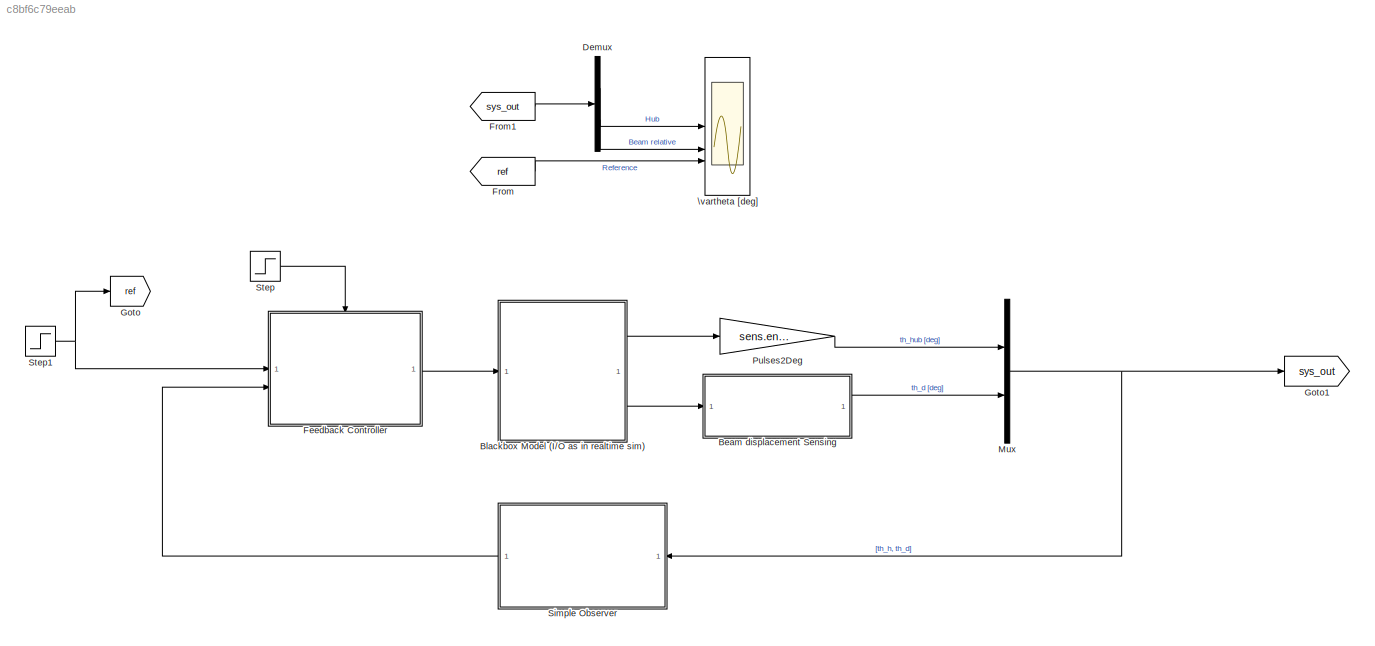
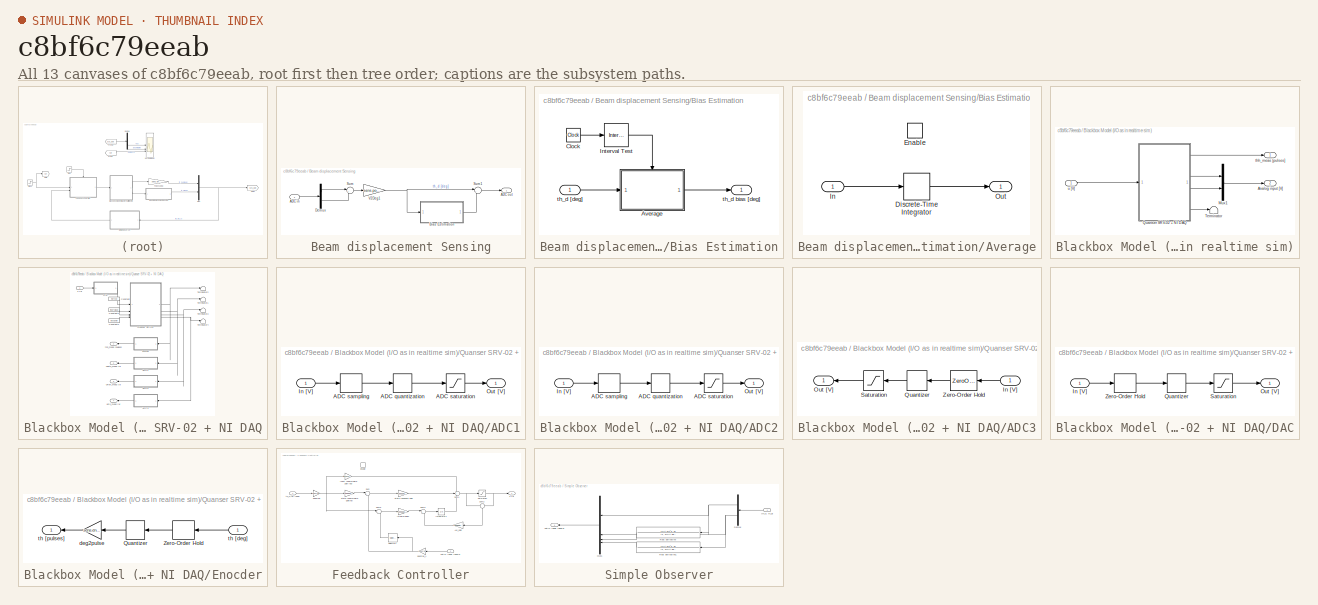
[diagram: thumbnail index - all 13 canvases of the model, root first then tree order]
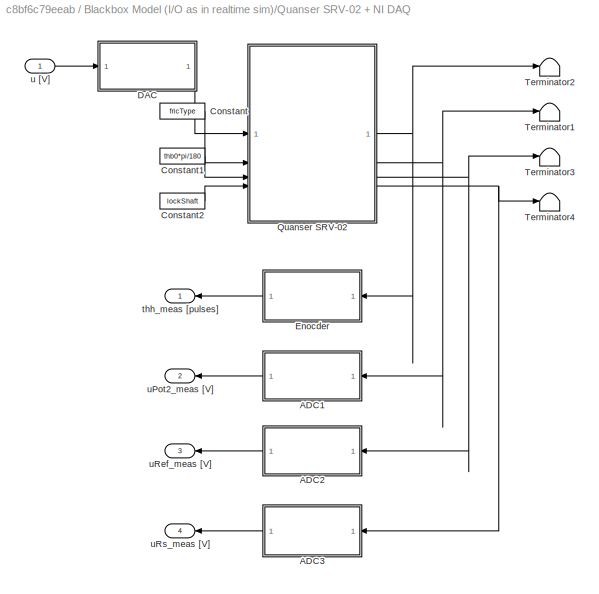
MODEL slx_c8bf6c79eeab
KIND model
CONFIG AbsTol = auto
CONFIG EnableMultiTasking = off
CONFIG FixedStep = auto
CONFIG MaxStep = auto
CONFIG MinStep = auto
CONFIG RelTol = 1e-3
CONFIG SampleTimeConstraint = Unconstrained
CONFIG SolverName = ode45
CONFIG StartTime = 0.0
CONFIG StopTime = sIn.simulation_time
BLOCK [SubSystem] Beam displacement Sensing
BLOCK [Inport] Beam displacement Sensing/ADC in
BLOCK [Outport] Beam displacement Sensing/ADC out
BLOCK [SubSystem] Beam displacement Sensing/Bias Estimation
BLOCK [SubSystem] Beam displacement Sensing/Bias Estimation/Average
BLOCK [DiscreteIntegrator] Beam displacement Sensing/Bias Estimation/Average/Discrete-Time Integrator
  ICPrevOutput = DiscIntNeverNeededParam
  ICPrevScaledInput = DiscIntNeverNeededParam
  InitialConditionSetting = Auto
  SampleTime = -1
  gainval = 1/(sIn.t1-sIn.t0)
BLOCK [EnablePort] Beam displacement Sensing/Bias Estimation/Average/Enable
BLOCK [Inport] Beam displacement Sensing/Bias Estimation/Average/In
BLOCK [Outport] Beam displacement Sensing/Bias Estimation/Average/Out
BLOCK [Clock] Beam displacement Sensing/Bias Estimation/Clock
BLOCK [Reference] Beam displacement Sensing/Bias Estimation/Interval Test  REF=simulink/Logic and Bit
Operations/Interval Test
  SourceBlock = simulink/Logic and Bit\nOperations/Interval Test
  SourceType = Interval Test
BLOCK [Inport] Beam displacement Sensing/Bias Estimation/th_d [deg]
BLOCK [Outport] Beam displacement Sensing/Bias Estimation/th_d bias [deg]
BLOCK [Demux] Beam displacement Sensing/Demux
  Outputs = 2
BLOCK [Sum] Beam displacement Sensing/Sum
  Inputs = |+-
BLOCK [Sum] Beam displacement Sensing/Sum1
  Inputs = |+-
BLOCK [Gain] Beam displacement Sensing/V2Deg1
  Gain = sens.pot2.V2deg
BLOCK [SubSystem] Blackbox Model (I//O as in realtime sim)
BLOCK [Outport] Blackbox Model (I//O as in realtime sim)/Analog input [V]
  Port = 2
BLOCK [Mux] Blackbox Model (I//O as in realtime sim)/Mux1
  DisplayOption = bar
  Inputs = 2
BLOCK [SubSystem] Blackbox Model (I//O as in realtime sim)/Quanser SRV-02 + NI DAQ
BLOCK [SubSystem] Blackbox Model (I//O as in realtime sim)/Quanser SRV-02 + NI DAQ/ADC1
BLOCK [Quantizer] Blackbox Model (I//O as in realtime sim)/Quanser SRV-02 + NI DAQ/ADC1/ADC quantization
  QuantizationInterval = daq.adc.q
BLOCK [ZeroOrderHold] Blackbox Model (I//O as in realtime sim)/Quanser SRV-02 + NI DAQ/ADC1/ADC sampling
  SampleTime = Ts
BLOCK [Saturate] Blackbox Model (I//O as in realtime sim)/Quanser SRV-02 + NI DAQ/ADC1/ADC saturation
  LowerLimit = -daq.adc.fs
  UpperLimit = daq.adc.fs
BLOCK [Inport] Blackbox Model (I//O as in realtime sim)/Quanser SRV-02 + NI DAQ/ADC1/In [V]
BLOCK [Outport] Blackbox Model (I//O as in realtime sim)/Quanser SRV-02 + NI DAQ/ADC1/Out [V]
BLOCK [SubSystem] Blackbox Model (I//O as in realtime sim)/Quanser SRV-02 + NI DAQ/ADC2
BLOCK [Quantizer] Blackbox Model (I//O as in realtime sim)/Quanser SRV-02 + NI DAQ/ADC2/ADC quantization
  QuantizationInterval = daq.adc.q
BLOCK [ZeroOrderHold] Blackbox Model (I//O as in realtime sim)/Quanser SRV-02 + NI DAQ/ADC2/ADC sampling
  SampleTime = Ts
BLOCK [Saturate] Blackbox Model (I//O as in realtime sim)/Quanser SRV-02 + NI DAQ/ADC2/ADC saturation
  LowerLimit = -daq.adc.fs
  UpperLimit = daq.adc.fs
BLOCK [Inport] Blackbox Model (I//O as in realtime sim)/Quanser SRV-02 + NI DAQ/ADC2/In [V]
BLOCK [Outport] Blackbox Model (I//O as in realtime sim)/Quanser SRV-02 + NI DAQ/ADC2/Out [V]
BLOCK [SubSystem] Blackbox Model (I//O as in realtime sim)/Quanser SRV-02 + NI DAQ/ADC3
BLOCK [Inport] Blackbox Model (I//O as in realtime sim)/Quanser SRV-02 + NI DAQ/ADC3/In [V]
BLOCK [Outport] Blackbox Model (I//O as in realtime sim)/Quanser SRV-02 + NI DAQ/ADC3/Out [V]
BLOCK [Quantizer] Blackbox Model (I//O as in realtime sim)/Quanser SRV-02 + NI DAQ/ADC3/Quantizer
  QuantizationInterval = daq.adc.q
BLOCK [Saturate] Blackbox Model (I//O as in realtime sim)/Quanser SRV-02 + NI DAQ/ADC3/Saturation
  LowerLimit = -daq.adc.fs
  UpperLimit = daq.adc.fs
BLOCK [ZeroOrderHold] Blackbox Model (I//O as in realtime sim)/Quanser SRV-02 + NI DAQ/ADC3/Zero-Order Hold
  SampleTime = Ts
BLOCK [Constant] Blackbox Model (I//O as in realtime sim)/Quanser SRV-02 + NI DAQ/Constant
  Value = fricType
BLOCK [Constant] Blackbox Model (I//O as in realtime sim)/Quanser SRV-02 + NI DAQ/Constant1
  SampleTime = Inf
  Value = thb0*pi/180
BLOCK [Constant] Blackbox Model (I//O as in realtime sim)/Quanser SRV-02 + NI DAQ/Constant2
  SampleTime = Inf
  Value = lockShaft
BLOCK [SubSystem] Blackbox Model (I//O as in realtime sim)/Quanser SRV-02 + NI DAQ/DAC
BLOCK [Inport] Blackbox Model (I//O as in realtime sim)/Quanser SRV-02 + NI DAQ/DAC/In [V]
BLOCK [Outport] Blackbox Model (I//O as in realtime sim)/Quanser SRV-02 + NI DAQ/DAC/Out [V]
BLOCK [Quantizer] Blackbox Model (I//O as in realtime sim)/Quanser SRV-02 + NI DAQ/DAC/Quantizer
  QuantizationInterval = daq.dac.q
BLOCK [Saturate] Blackbox Model (I//O as in realtime sim)/Quanser SRV-02 + NI DAQ/DAC/Saturation
  LowerLimit = -daq.dac.fs
  UpperLimit = daq.dac.fs
BLOCK [ZeroOrderHold] Blackbox Model (I//O as in realtime sim)/Quanser SRV-02 + NI DAQ/DAC/Zero-Order Hold
  SampleTime = Ts
BLOCK [SubSystem] Blackbox Model (I//O as in realtime sim)/Quanser SRV-02 + NI DAQ/Enocder
BLOCK [Quantizer] Blackbox Model (I//O as in realtime sim)/Quanser SRV-02 + NI DAQ/Enocder/Quantizer
  QuantizationInterval = sens.enc.pulse2deg
BLOCK [ZeroOrderHold] Blackbox Model (I//O as in realtime sim)/Quanser SRV-02 + NI DAQ/Enocder/Zero-Order Hold
  SampleTime = Ts
BLOCK [Gain] Blackbox Model (I//O as in realtime sim)/Quanser SRV-02 + NI DAQ/Enocder/deg2pulse
  Gain = sens.enc.deg2pulse
BLOCK [Inport] Blackbox Model (I//O as in realtime sim)/Quanser SRV-02 + NI DAQ/Enocder/th [deg]
BLOCK [Outport] Blackbox Model (I//O as in realtime sim)/Quanser SRV-02 + NI DAQ/Enocder/th [pulses]
BLOCK [ModelReference] Blackbox Model (I//O as in realtime sim)/Quanser SRV-02 + NI DAQ/Quanser SRV-02
  CopyOfModelProtected = on
  ModelNameDialog = SRV02RL_win64.slxp
  ModelReferenceVersion = 1.76
BLOCK [Terminator] Blackbox Model (I//O as in realtime sim)/Quanser SRV-02 + NI DAQ/Terminator1
BLOCK [Terminator] Blackbox Model (I//O as in realtime sim)/Quanser SRV-02 + NI DAQ/Terminator2
BLOCK [Terminator] Blackbox Model (I//O as in realtime sim)/Quanser SRV-02 + NI DAQ/Terminator3
BLOCK [Terminator] Blackbox Model (I//O as in realtime sim)/Quanser SRV-02 + NI DAQ/Terminator4
BLOCK [Outport] Blackbox Model (I//O as in realtime sim)/Quanser SRV-02 + NI DAQ/thh_meas [pulses]
BLOCK [Inport] Blackbox Model (I//O as in realtime sim)/Quanser SRV-02 + NI DAQ/u [V]
BLOCK [Outport] Blackbox Model (I//O as in realtime sim)/Quanser SRV-02 + NI DAQ/uPot2_meas [V]
  Port = 2
BLOCK [Outport] Blackbox Model (I//O as in realtime sim)/Quanser SRV-02 + NI DAQ/uRef_meas [V]
  Port = 3
BLOCK [Outport] Blackbox Model (I//O as in realtime sim)/Quanser SRV-02 + NI DAQ/uRs_meas [V]
  Port = 4
BLOCK [Terminator] Blackbox Model (I//O as in realtime sim)/Terminator
BLOCK [Outport] Blackbox Model (I//O as in realtime sim)/thh_meas [pulses]
BLOCK [Inport] Blackbox Model (I//O as in realtime sim)/u [V]
BLOCK [Demux] Demux
  Outputs = 2
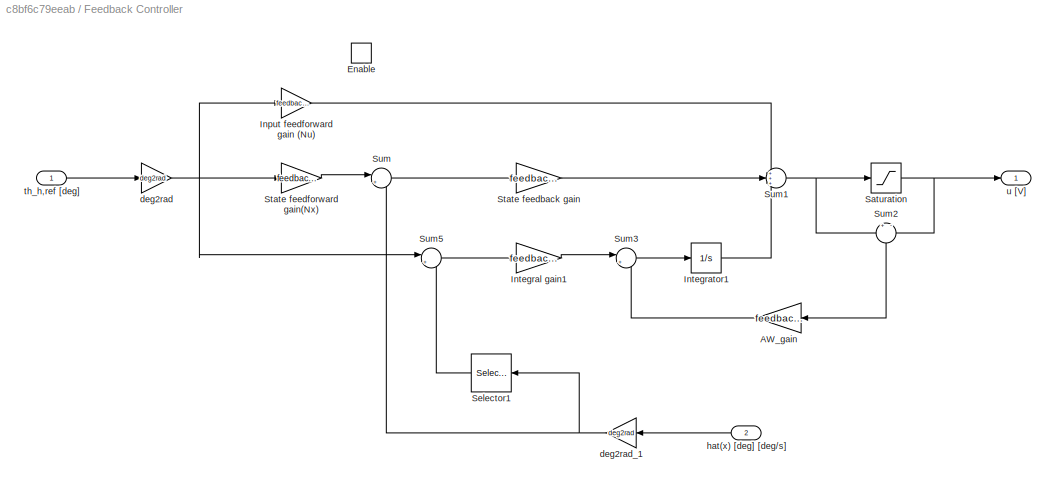
BLOCK [SubSystem] Feedback Controller
BLOCK [Gain] Feedback Controller/AW_gain
  Gain = feedback.AWgain
BLOCK [EnablePort] Feedback Controller/Enable
BLOCK [Gain] Feedback Controller/Input feedforward gain (Nu)
  Gain = feedback.Nu
BLOCK [Gain] Feedback Controller/Integral gain1
  Gain = feedback.robustKi
  Multiplication = Matrix(K*u)
BLOCK [Integrator] Feedback Controller/Integrator1
BLOCK [Saturate] Feedback Controller/Saturation
  LowerLimit = -10
  UpperLimit = 10
BLOCK [Selector] Feedback Controller/Selector1
  IndexOptions = Index vector (dialog)
  Indices = 1
  InputPortWidth = 4
  OutputSizes = 1
BLOCK [Gain] Feedback Controller/State feedback gain
  Gain = feedback.robustK
  Multiplication = Matrix(K*u)
BLOCK [Gain] Feedback Controller/State feedforward gain(Nx)
  Gain = feedback.Nx
BLOCK [Sum] Feedback Controller/Sum
  Inputs = |+-
BLOCK [Sum] Feedback Controller/Sum1
  Inputs = +++
BLOCK [Sum] Feedback Controller/Sum2
  Inputs = +|-
  NameLocation = left
BLOCK [Sum] Feedback Controller/Sum3
  Inputs = |+-
BLOCK [Sum] Feedback Controller/Sum5
  Inputs = |+-
BLOCK [Gain] Feedback Controller/deg2rad
  Gain = deg2rad
BLOCK [Gain] Feedback Controller/deg2rad_1
  Gain = deg2rad
BLOCK [Inport] Feedback Controller/hat(x) [deg] [deg//s]
  Port = 2
BLOCK [Inport] Feedback Controller/th_h,ref [deg]
BLOCK [Outport] Feedback Controller/u [V]
BLOCK [From] From
  GotoTag = ref
BLOCK [From] From1
  GotoTag = sys_out
BLOCK [Goto] Goto
  GotoTag = ref
BLOCK [Goto] Goto1
  GotoTag = sys_out
BLOCK [Mux] Mux
  DisplayOption = bar
  Inputs = 2
BLOCK [Gain] Pulses2Deg
  Gain = sens.enc.pulse2deg
BLOCK [SubSystem] Simple Observer
BLOCK [Demux] Simple Observer/Demux
  Outputs = 2
BLOCK [Mux] Simple Observer/Mux1
  DisplayOption = bar
BLOCK [TransferFcn] Simple Observer/Real derivative
  Denominator = [1, 2*filt.del*filt.wc, filt.wc^2]
  Numerator = [filt.wc^2, 0]
BLOCK [TransferFcn] Simple Observer/Real derivative1
  Denominator = [1, 2*filt.del*filt.wc, filt.wc^2]
  Numerator = [filt.wc^2, 0]
BLOCK [Inport] Simple Observer/[th_h, th_d]
BLOCK [Outport] Simple Observer/hat(x) [deg] [deg//s]
BLOCK [Step] Step
  SampleTime = 0
  Time = sIn.t1
BLOCK [Step] Step1
  After = sIn.position
  SampleTime = 0
  Time = sIn.t1
BLOCK [Scope] \vartheta [deg]
  Floating = off
  NumInputPorts = 3
  ScopeSpecificationString = Simulink.scopes.TimeScopeBlockCfg('CurrentConfiguration', extmgr.ConfigurationSet(extmgr.Configuration('Core','General UI',true),extmgr.Configuration('Core','Source UI',true),extmgr.Configuration('Sources','WiredSimulink',true,'DataLogging',true,'DataLoggingSaveFormat','StructureWithTime'),extmgr.Configuration('Visuals','Time Domain',true,'SerializedDisplays',{struct('MinYLimReal','-22.86664','Max...<+1760ch>
LINE Beam displacement Sensing/ADC in:1 -> Beam displacement Sensing/Demux:1
LINE Beam displacement Sensing/Bias Estimation/Average/Discrete-Time Integrator:1 -> Beam displacement Sensing/Bias Estimation/Average/Out:1
LINE Beam displacement Sensing/Bias Estimation/Average/In:1 -> Beam displacement Sensing/Bias Estimation/Average/Discrete-Time Integrator:1
LINE Beam displacement Sensing/Bias Estimation/Average:1 -> Beam displacement Sensing/Bias Estimation/th_d bias [deg]:1
LINE Beam displacement Sensing/Bias Estimation/Clock:1 -> Beam displacement Sensing/Bias Estimation/Interval Test:1
LINE Beam displacement Sensing/Bias Estimation/Interval Test:1 -> Beam displacement Sensing/Bias Estimation/Average:enable
LINE Beam displacement Sensing/Bias Estimation/th_d [deg]:1 -> Beam displacement Sensing/Bias Estimation/Average:1
LINE Beam displacement Sensing/Bias Estimation:1 -> Beam displacement Sensing/Sum1:2
LINE Beam displacement Sensing/Demux:1 -> Beam displacement Sensing/Sum:1
LINE Beam displacement Sensing/Demux:2 -> Beam displacement Sensing/Sum:2
LINE Beam displacement Sensing/Sum1:1 -> Beam displacement Sensing/ADC out:1
LINE Beam displacement Sensing/Sum:1 -> Beam displacement Sensing/V2Deg1:1
NET Beam displacement Sensing/V2Deg1:1 -> Beam displacement Sensing/Bias Estimation:1, Beam displacement Sensing/Sum1:1
LINE Beam displacement Sensing:1 -> Mux:2
LINE Blackbox Model (I//O as in realtime sim)/Mux1:1 -> Blackbox Model (I//O as in realtime sim)/Analog input [V]:1
LINE Blackbox Model (I//O as in realtime sim)/Quanser SRV-02 + NI DAQ/ADC1/ADC quantization:1 -> Blackbox Model (I//O as in realtime sim)/Quanser SRV-02 + NI DAQ/ADC1/ADC saturation:1
LINE Blackbox Model (I//O as in realtime sim)/Quanser SRV-02 + NI DAQ/ADC1/ADC sampling:1 -> Blackbox Model (I//O as in realtime sim)/Quanser SRV-02 + NI DAQ/ADC1/ADC quantization:1
LINE Blackbox Model (I//O as in realtime sim)/Quanser SRV-02 + NI DAQ/ADC1/ADC saturation:1 -> Blackbox Model (I//O as in realtime sim)/Quanser SRV-02 + NI DAQ/ADC1/Out [V]:1
LINE Blackbox Model (I//O as in realtime sim)/Quanser SRV-02 + NI DAQ/ADC1/In [V]:1 -> Blackbox Model (I//O as in realtime sim)/Quanser SRV-02 + NI DAQ/ADC1/ADC sampling:1
LINE Blackbox Model (I//O as in realtime sim)/Quanser SRV-02 + NI DAQ/ADC1:1 -> Blackbox Model (I//O as in realtime sim)/Quanser SRV-02 + NI DAQ/uPot2_meas [V]:1
LINE Blackbox Model (I//O as in realtime sim)/Quanser SRV-02 + NI DAQ/ADC2/ADC quantization:1 -> Blackbox Model (I//O as in realtime sim)/Quanser SRV-02 + NI DAQ/ADC2/ADC saturation:1
LINE Blackbox Model (I//O as in realtime sim)/Quanser SRV-02 + NI DAQ/ADC2/ADC sampling:1 -> Blackbox Model (I//O as in realtime sim)/Quanser SRV-02 + NI DAQ/ADC2/ADC quantization:1
LINE Blackbox Model (I//O as in realtime sim)/Quanser SRV-02 + NI DAQ/ADC2/ADC saturation:1 -> Blackbox Model (I//O as in realtime sim)/Quanser SRV-02 + NI DAQ/ADC2/Out [V]:1
LINE Blackbox Model (I//O as in realtime sim)/Quanser SRV-02 + NI DAQ/ADC2/In [V]:1 -> Blackbox Model (I//O as in realtime sim)/Quanser SRV-02 + NI DAQ/ADC2/ADC sampling:1
LINE Blackbox Model (I//O as in realtime sim)/Quanser SRV-02 + NI DAQ/ADC2:1 -> Blackbox Model (I//O as in realtime sim)/Quanser SRV-02 + NI DAQ/uRef_meas [V]:1
LINE Blackbox Model (I//O as in realtime sim)/Quanser SRV-02 + NI DAQ/ADC3/In [V]:1 -> Blackbox Model (I//O as in realtime sim)/Quanser SRV-02 + NI DAQ/ADC3/Zero-Order Hold:1
LINE Blackbox Model (I//O as in realtime sim)/Quanser SRV-02 + NI DAQ/ADC3/Quantizer:1 -> Blackbox Model (I//O as in realtime sim)/Quanser SRV-02 + NI DAQ/ADC3/Saturation:1
LINE Blackbox Model (I//O as in realtime sim)/Quanser SRV-02 + NI DAQ/ADC3/Saturation:1 -> Blackbox Model (I//O as in realtime sim)/Quanser SRV-02 + NI DAQ/ADC3/Out [V]:1
LINE Blackbox Model (I//O as in realtime sim)/Quanser SRV-02 + NI DAQ/ADC3/Zero-Order Hold:1 -> Blackbox Model (I//O as in realtime sim)/Quanser SRV-02 + NI DAQ/ADC3/Quantizer:1
LINE Blackbox Model (I//O as in realtime sim)/Quanser SRV-02 + NI DAQ/ADC3:1 -> Blackbox Model (I//O as in realtime sim)/Quanser SRV-02 + NI DAQ/uRs_meas [V]:1
LINE Blackbox Model (I//O as in realtime sim)/Quanser SRV-02 + NI DAQ/Constant1:1 -> Blackbox Model (I//O as in realtime sim)/Quanser SRV-02 + NI DAQ/Quanser SRV-02:3
LINE Blackbox Model (I//O as in realtime sim)/Quanser SRV-02 + NI DAQ/Constant2:1 -> Blackbox Model (I//O as in realtime sim)/Quanser SRV-02 + NI DAQ/Quanser SRV-02:4
LINE Blackbox Model (I//O as in realtime sim)/Quanser SRV-02 + NI DAQ/Constant:1 -> Blackbox Model (I//O as in realtime sim)/Quanser SRV-02 + NI DAQ/Quanser SRV-02:2
LINE Blackbox Model (I//O as in realtime sim)/Quanser SRV-02 + NI DAQ/DAC/In [V]:1 -> Blackbox Model (I//O as in realtime sim)/Quanser SRV-02 + NI DAQ/DAC/Zero-Order Hold:1
LINE Blackbox Model (I//O as in realtime sim)/Quanser SRV-02 + NI DAQ/DAC/Quantizer:1 -> Blackbox Model (I//O as in realtime sim)/Quanser SRV-02 + NI DAQ/DAC/Saturation:1
LINE Blackbox Model (I//O as in realtime sim)/Quanser SRV-02 + NI DAQ/DAC/Saturation:1 -> Blackbox Model (I//O as in realtime sim)/Quanser SRV-02 + NI DAQ/DAC/Out [V]:1
LINE Blackbox Model (I//O as in realtime sim)/Quanser SRV-02 + NI DAQ/DAC/Zero-Order Hold:1 -> Blackbox Model (I//O as in realtime sim)/Quanser SRV-02 + NI DAQ/DAC/Quantizer:1
LINE Blackbox Model (I//O as in realtime sim)/Quanser SRV-02 + NI DAQ/DAC:1 -> Blackbox Model (I//O as in realtime sim)/Quanser SRV-02 + NI DAQ/Quanser SRV-02:1
LINE Blackbox Model (I//O as in realtime sim)/Quanser SRV-02 + NI DAQ/Enocder/Quantizer:1 -> Blackbox Model (I//O as in realtime sim)/Quanser SRV-02 + NI DAQ/Enocder/deg2pulse:1
LINE Blackbox Model (I//O as in realtime sim)/Quanser SRV-02 + NI DAQ/Enocder/Zero-Order Hold:1 -> Blackbox Model (I//O as in realtime sim)/Quanser SRV-02 + NI DAQ/Enocder/Quantizer:1
LINE Blackbox Model (I//O as in realtime sim)/Quanser SRV-02 + NI DAQ/Enocder/deg2pulse:1 -> Blackbox Model (I//O as in realtime sim)/Quanser SRV-02 + NI DAQ/Enocder/th [pulses]:1
LINE Blackbox Model (I//O as in realtime sim)/Quanser SRV-02 + NI DAQ/Enocder/th [deg]:1 -> Blackbox Model (I//O as in realtime sim)/Quanser SRV-02 + NI DAQ/Enocder/Zero-Order Hold:1
LINE Blackbox Model (I//O as in realtime sim)/Quanser SRV-02 + NI DAQ/Enocder:1 -> Blackbox Model (I//O as in realtime sim)/Quanser SRV-02 + NI DAQ/thh_meas [pulses]:1
NET Blackbox Model (I//O as in realtime sim)/Quanser SRV-02 + NI DAQ/Quanser SRV-02:1 -> Blackbox Model (I//O as in realtime sim)/Quanser SRV-02 + NI DAQ/Enocder:1, Blackbox Model (I//O as in realtime sim)/Quanser SRV-02 + NI DAQ/Terminator2:1
NET Blackbox Model (I//O as in realtime sim)/Quanser SRV-02 + NI DAQ/Quanser SRV-02:2 -> Blackbox Model (I//O as in realtime sim)/Quanser SRV-02 + NI DAQ/ADC1:1, Blackbox Model (I//O as in realtime sim)/Quanser SRV-02 + NI DAQ/Terminator1:1
NET Blackbox Model (I//O as in realtime sim)/Quanser SRV-02 + NI DAQ/Quanser SRV-02:3 -> Blackbox Model (I//O as in realtime sim)/Quanser SRV-02 + NI DAQ/ADC2:1, Blackbox Model (I//O as in realtime sim)/Quanser SRV-02 + NI DAQ/Terminator3:1
NET Blackbox Model (I//O as in realtime sim)/Quanser SRV-02 + NI DAQ/Quanser SRV-02:4 -> Blackbox Model (I//O as in realtime sim)/Quanser SRV-02 + NI DAQ/ADC3:1, Blackbox Model (I//O as in realtime sim)/Quanser SRV-02 + NI DAQ/Terminator4:1
LINE Blackbox Model (I//O as in realtime sim)/Quanser SRV-02 + NI DAQ/u [V]:1 -> Blackbox Model (I//O as in realtime sim)/Quanser SRV-02 + NI DAQ/DAC:1
LINE Blackbox Model (I//O as in realtime sim)/Quanser SRV-02 + NI DAQ:1 -> Blackbox Model (I//O as in realtime sim)/thh_meas [pulses]:1
LINE Blackbox Model (I//O as in realtime sim)/Quanser SRV-02 + NI DAQ:2 -> Blackbox Model (I//O as in realtime sim)/Mux1:1
LINE Blackbox Model (I//O as in realtime sim)/Quanser SRV-02 + NI DAQ:3 -> Blackbox Model (I//O as in realtime sim)/Mux1:2
LINE Blackbox Model (I//O as in realtime sim)/Quanser SRV-02 + NI DAQ:4 -> Blackbox Model (I//O as in realtime sim)/Terminator:1
LINE Blackbox Model (I//O as in realtime sim)/u [V]:1 -> Blackbox Model (I//O as in realtime sim)/Quanser SRV-02 + NI DAQ:1
LINE Blackbox Model (I//O as in realtime sim):1 -> Pulses2Deg:1
LINE Blackbox Model (I//O as in realtime sim):2 -> Beam displacement Sensing:1
LINE Demux:1 -> \vartheta [deg]:1
LINE Demux:2 -> \vartheta [deg]:2
LINE Feedback Controller/AW_gain:1 -> Feedback Controller/Sum3:2
LINE Feedback Controller/Input feedforward gain (Nu):1 -> Feedback Controller/Sum1:1
LINE Feedback Controller/Integral gain1:1 -> Feedback Controller/Sum3:1
LINE Feedback Controller/Integrator1:1 -> Feedback Controller/Sum1:3
NET Feedback Controller/Saturation:1 -> Feedback Controller/Sum2:2, Feedback Controller/u [V]:1
LINE Feedback Controller/Selector1:1 -> Feedback Controller/Sum5:2
LINE Feedback Controller/State feedback gain:1 -> Feedback Controller/Sum1:2
LINE Feedback Controller/State feedforward gain(Nx):1 -> Feedback Controller/Sum:1
NET Feedback Controller/Sum1:1 -> Feedback Controller/Saturation:1, Feedback Controller/Sum2:1
LINE Feedback Controller/Sum2:1 -> Feedback Controller/AW_gain:1
LINE Feedback Controller/Sum3:1 -> Feedback Controller/Integrator1:1
LINE Feedback Controller/Sum5:1 -> Feedback Controller/Integral gain1:1
LINE Feedback Controller/Sum:1 -> Feedback Controller/State feedback gain:1
NET Feedback Controller/deg2rad:1 -> Feedback Controller/Input feedforward gain (Nu):1, Feedback Controller/State feedforward gain(Nx):1, Feedback Controller/Sum5:1
NET Feedback Controller/deg2rad_1:1 -> Feedback Controller/Selector1:1, Feedback Controller/Sum:2
LINE Feedback Controller/hat(x) [deg] [deg//s]:1 -> Feedback Controller/deg2rad_1:1
LINE Feedback Controller/th_h,ref [deg]:1 -> Feedback Controller/deg2rad:1
LINE Feedback Controller:1 -> Blackbox Model (I//O as in realtime sim):1
LINE From1:1 -> Demux:1
LINE From:1 -> \vartheta [deg]:3
NET Mux:1 -> Goto1:1, Simple Observer:1
LINE Pulses2Deg:1 -> Mux:1
NET Simple Observer/Demux:1 -> Simple Observer/Mux1:1, Simple Observer/Real derivative:1
NET Simple Observer/Demux:2 -> Simple Observer/Mux1:2, Simple Observer/Real derivative1:1
LINE Simple Observer/Mux1:1 -> Simple Observer/hat(x) [deg] [deg//s]:1
LINE Simple Observer/Real derivative1:1 -> Simple Observer/Mux1:4
LINE Simple Observer/Real derivative:1 -> Simple Observer/Mux1:3
LINE Simple Observer/[th_h, th_d]:1 -> Simple Observer/Demux:1
LINE Simple Observer:1 -> Feedback Controller:2
NET Step1:1 -> Feedback Controller:1, Goto:1
LINE Step:1 -> Feedback Controller:enable
note: NET lines group one-source signal fan-out (src -> all destinations, sorted); 1:1 wires keep LINE
